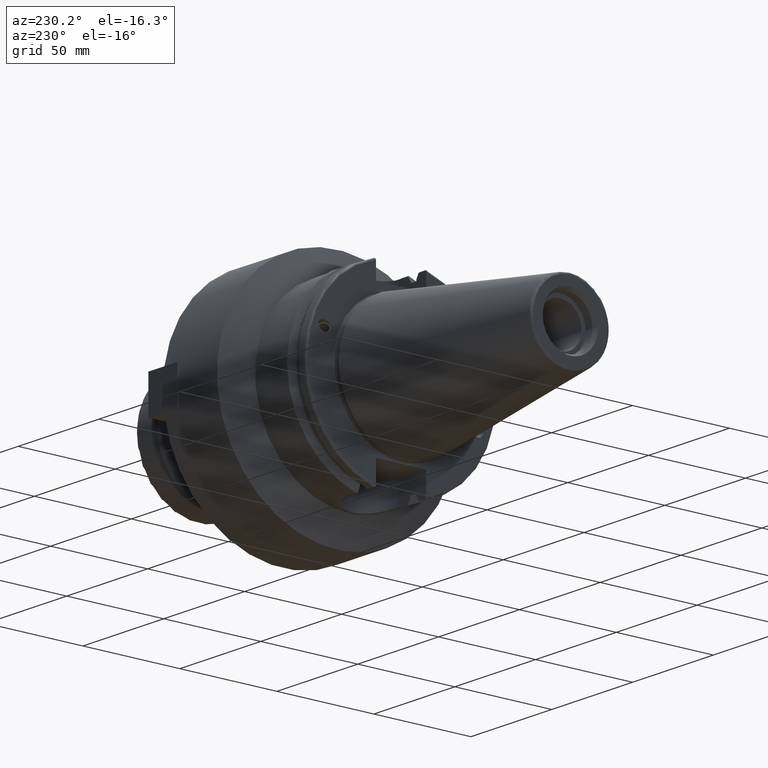
[diagram: clean part render]
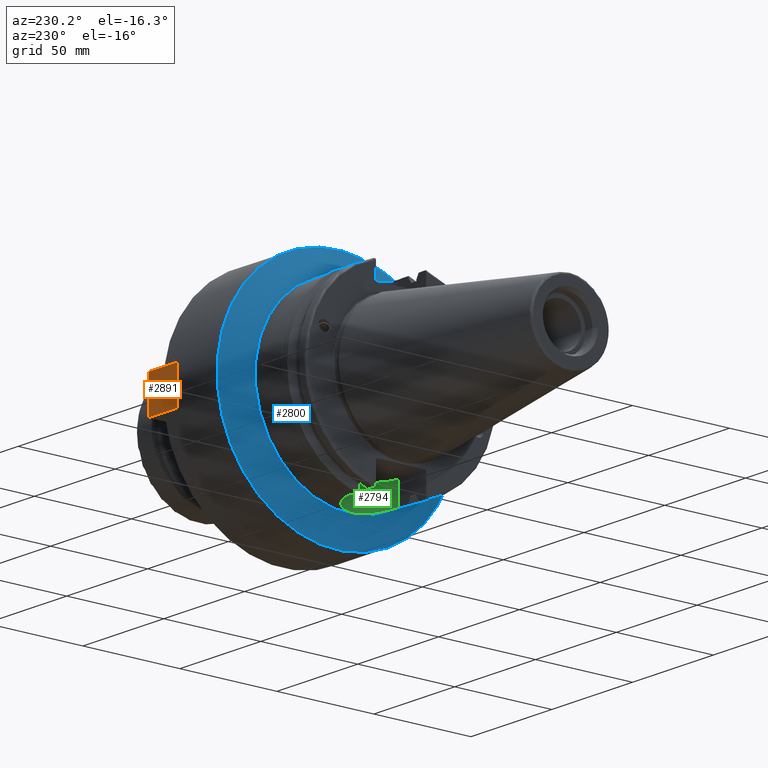
[diagram: same view with three faces highlighted in distinct colors, each labeled with its STEP entity id]
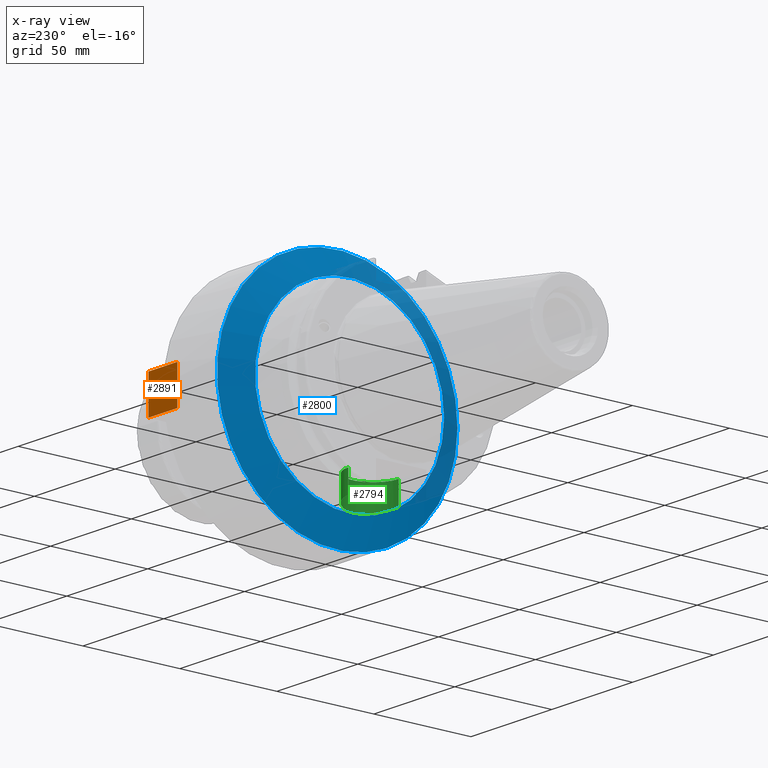
[diagram: x-ray of the same camera — body ghosted, the three highlighted faces saturated]
A machine part, auxiliary view with three faces highlighted in distinct colors.
The next image is the same camera in x-ray (body ghosted, the three faces saturated) — at least one of them is partly hidden behind the body in this view.
Their STEP definitions:

[orange] entity #2891 — the highlighted planar face has unit normal (-0, 1, 0).
#896=FACE_OUTER_BOUND('',#1062,.T.);
#1062=EDGE_LOOP('',(#2568,#2569,#2570,#2571));
#1221=LINE('',#5611,#1380);
#1222=LINE('',#5614,#1381);
#1223=LINE('',#5616,#1382);
#1224=LINE('',#5617,#1383);
#1380=VECTOR('',#4011,10.);
#1381=VECTOR('',#4014,10.);
#1382=VECTOR('',#4015,10.);
#1383=VECTOR('',#4016,10.);
#1606=VERTEX_POINT('',#5604);
#1609=VERTEX_POINT('',#5609);
#1610=VERTEX_POINT('',#5613);
#1611=VERTEX_POINT('',#5615);
#1936=EDGE_CURVE('',#1606,#1609,#1221,.T.);
#1937=EDGE_CURVE('',#1610,#1606,#1222,.T.);
#1938=EDGE_CURVE('',#1611,#1609,#1223,.T.);
#1939=EDGE_CURVE('',#1610,#1611,#1224,.T.);
#2568=ORIENTED_EDGE('',*,*,#1937,.T.);
#2569=ORIENTED_EDGE('',*,*,#1936,.T.);
#2570=ORIENTED_EDGE('',*,*,#1938,.F.);
#2571=ORIENTED_EDGE('',*,*,#1939,.F.);
#2761=PLANE('',#3314);
#2891=ADVANCED_FACE('',(#896),#2761,.T.);
#3314=AXIS2_PLACEMENT_3D('',#5612,#4012,#4013);
#4011=DIRECTION('',(0.,1.,0.));
#4012=DIRECTION('center_axis',(0.,0.,-1.));
#4013=DIRECTION('ref_axis',(-1.,0.,0.));
#4014=DIRECTION('',(-1.,0.,0.));
#4015=DIRECTION('',(-1.,0.,0.));
#4016=DIRECTION('',(0.,1.,0.));
#5604=CARTESIAN_POINT('',(-9.525,0.,-12.475));
#5609=CARTESIAN_POINT('',(-9.525,18.,-12.475));
#5611=CARTESIAN_POINT('',(-9.525,0.,-12.475));
#5612=CARTESIAN_POINT('Origin',(9.525,0.,-12.475));
#5613=CARTESIAN_POINT('',(9.525,0.,-12.475));
#5614=CARTESIAN_POINT('',(9.525,0.,-12.475));
#5615=CARTESIAN_POINT('',(9.525,18.,-12.475));
#5616=CARTESIAN_POINT('',(9.525,18.,-12.475));
#5617=CARTESIAN_POINT('',(9.525,0.,-12.475));

[blue] entity #2800 — the highlighted conical surface has half-angle 60 deg.
#598=CONICAL_SURFACE('',#3126,55.34375,1.0471975511966);
#648=CIRCLE('',#3095,61.975);
#657=CIRCLE('',#3112,48.7125);
#805=FACE_OUTER_BOUND('',#951,.T.);
#951=EDGE_LOOP('',(#2105,#2106,#2107,#2108));
#1132=LINE('',#4497,#1291);
#1291=VECTOR('',#3548,55.34375);
#1429=VERTEX_POINT('',#4299);
#1445=VERTEX_POINT('',#4363);
#1670=EDGE_CURVE('',#1429,#1429,#648,.T.);
#1692=EDGE_CURVE('',#1445,#1445,#657,.T.);
#1717=EDGE_CURVE('',#1429,#1445,#1132,.T.);
#2105=ORIENTED_EDGE('',*,*,#1670,.F.);
#2106=ORIENTED_EDGE('',*,*,#1717,.T.);
#2107=ORIENTED_EDGE('',*,*,#1692,.T.);
#2108=ORIENTED_EDGE('',*,*,#1717,.F.);
#2800=ADVANCED_FACE('',(#805),#598,.T.);
#3095=AXIS2_PLACEMENT_3D('',#4301,#3462,#3463);
#3112=AXIS2_PLACEMENT_3D('',#4364,#3508,#3509);
#3126=AXIS2_PLACEMENT_3D('',#4496,#3546,#3547);
#3462=DIRECTION('center_axis',(1.,0.,0.));
#3463=DIRECTION('ref_axis',(0.,0.,-1.));
#3508=DIRECTION('center_axis',(1.,0.,0.));
#3509=DIRECTION('ref_axis',(0.,0.,-1.));
#3546=DIRECTION('center_axis',(1.,0.,0.));
#3547=DIRECTION('ref_axis',(0.,1.,0.));
#3548=DIRECTION('',(-0.5,0.866025403784439,1.06057523872491E-16));
#4299=CARTESIAN_POINT('',(42.6571079451274,-61.975,-7.58974853771572E-15));
#4301=CARTESIAN_POINT('Origin',(42.6571079451274,0.,0.));
#4363=CARTESIAN_POINT('',(35.,-48.7125,-5.96556072034654E-15));
#4364=CARTESIAN_POINT('Origin',(35.,0.,0.));
#4496=CARTESIAN_POINT('Origin',(38.8285539725637,0.,0.));
#4497=CARTESIAN_POINT('',(38.8285539725637,-55.34375,-6.77765462903113E-15));

[green] entity #2794 — the highlighted cylindrical surface (edge-blend (fillet) strip) has radius 12.95 mm, axis along (0, 0, -1).
#513=B_SPLINE_CURVE_WITH_KNOTS('',3,(#4339,#4340,#4341,#4342,#4343,#4344,
#4345,#4346,#4347,#4348,#4349,#4350,#4351,#4352,#4353,#4354,#4355,#4356),
 .UNSPECIFIED.,.F.,.F.,(4,2,2,2,2,2,2,2,4),(-3.92288521489027,-3.43248037309767,
-2.94207553130506,-2.4517590693751,-1.96144260744514,-1.47112614551517,
-0.980809683585208,-0.490404841792604,0.),.UNSPECIFIED.);
#558=CYLINDRICAL_SURFACE('',#3109,12.95);
#656=CIRCLE('',#3110,12.95);
#799=FACE_OUTER_BOUND('',#943,.T.);
#943=EDGE_LOOP('',(#2067,#2068,#2069,#2070));
#1120=LINE('',#4358,#1279);
#1121=LINE('',#4361,#1280);
#1279=VECTOR('',#3502,10.);
#1280=VECTOR('',#3505,10.);
#1441=VERTEX_POINT('',#4337);
#1442=VERTEX_POINT('',#4338);
#1443=VERTEX_POINT('',#4357);
#1444=VERTEX_POINT('',#4359);
#1688=EDGE_CURVE('',#1441,#1442,#513,.T.);
#1689=EDGE_CURVE('',#1443,#1441,#1120,.T.);
#1690=EDGE_CURVE('',#1444,#1443,#656,.T.);
#1691=EDGE_CURVE('',#1444,#1442,#1121,.T.);
#2067=ORIENTED_EDGE('',*,*,#1688,.F.);
#2068=ORIENTED_EDGE('',*,*,#1689,.F.);
#2069=ORIENTED_EDGE('',*,*,#1690,.F.);
#2070=ORIENTED_EDGE('',*,*,#1691,.T.);
#2794=ADVANCED_FACE('',(#799),#558,.F.);
#3109=AXIS2_PLACEMENT_3D('',#4336,#3500,#3501);
#3110=AXIS2_PLACEMENT_3D('',#4360,#3503,#3504);
#3500=DIRECTION('center_axis',(0.,0.,-1.));
#3501=DIRECTION('ref_axis',(3.42926030772249E-16,1.,0.));
#3502=DIRECTION('',(0.,0.,-1.));
#3503=DIRECTION('center_axis',(0.,0.,-1.));
#3504=DIRECTION('ref_axis',(3.42926030772249E-16,1.,0.));
#3505=DIRECTION('',(0.,0.,-1.));
#4336=CARTESIAN_POINT('Origin',(20.225,-7.17414235180136E-15,-35.306));
#4337=CARTESIAN_POINT('',(20.225,-12.95,-46.9596119686907));
#4338=CARTESIAN_POINT('',(20.225,12.95,-46.9596119686907));
#4339=CARTESIAN_POINT('Ctrl Pts',(20.225,-12.95,-46.9596119686907));
#4340=CARTESIAN_POINT('Ctrl Pts',(21.8596828059753,-12.95,-46.9596119686907));
#4341=CARTESIAN_POINT('Ctrl Pts',(23.5976177851434,-12.621692625041,-47.0538719118288));
#4342=CARTESIAN_POINT('Ctrl Pts',(26.7857019082409,-11.2977379674511,-47.3891874685781));
#4343=CARTESIAN_POINT('Ctrl Pts',(28.2365797973367,-10.3024858353948,-47.6248524104678));
#4344=CARTESIAN_POINT('Ctrl Pts',(30.5272794039491,-8.01178622878248,-48.06327675822));
#4345=CARTESIAN_POINT('Ctrl Pts',(31.5226921774096,-6.56082298010262,-48.2952524720369));
#4346=CARTESIAN_POINT('Ctrl Pts',(32.846764472268,-3.37243396735377,-48.6220371692639));
#4347=CARTESIAN_POINT('Ctrl Pts',(33.175,-1.63438820643323,-48.7125));
#4348=CARTESIAN_POINT('Ctrl Pts',(33.175,1.6343882064332,-48.7125));
#4349=CARTESIAN_POINT('Ctrl Pts',(32.846764472268,3.37243396735374,-48.6220371692639));
#4350=CARTESIAN_POINT('Ctrl Pts',(31.5226921774096,6.56082298010259,-48.2952524720369));
#4351=CARTESIAN_POINT('Ctrl Pts',(30.5272794039491,8.01178622878245,-48.06327675822));
#4352=CARTESIAN_POINT('Ctrl Pts',(28.2365797973367,10.3024858353948,-47.6248524104678));
#4353=CARTESIAN_POINT('Ctrl Pts',(26.785701908241,11.2977379674511,-47.3891874685782));
#4354=CARTESIAN_POINT('Ctrl Pts',(23.5976177851434,12.621692625041,-47.0538719118288));
#4355=CARTESIAN_POINT('Ctrl Pts',(21.8596828059753,12.95,-46.9596119686907));
#4356=CARTESIAN_POINT('Ctrl Pts',(20.225,12.95,-46.9596119686907));
#4357=CARTESIAN_POINT('',(20.225,-12.95,-35.306));
#4358=CARTESIAN_POINT('',(20.225,-12.95,-35.306));
#4359=CARTESIAN_POINT('',(20.225,12.95,-35.306));
#4360=CARTESIAN_POINT('Origin',(20.225,-7.17414235180136E-15,-35.306));
#4361=CARTESIAN_POINT('',(20.225,12.95,-35.306));